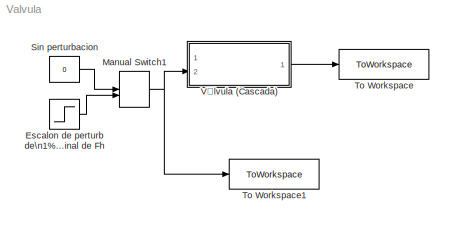
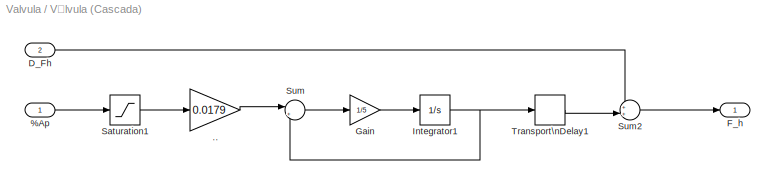
MODEL Valvula
KIND model
BLOCK [Step] Escalon de perturb de\n1% del valor nominal de Fh
  After = Fh0*1.01
  Before = Fh0
  SID = 11
  SampleTime = 0
  Time = 50
BLOCK [ManualSwitch] Manual Switch1
  SID = 14
BLOCK [Constant] Sin perturbacion
  SID = 13
  Value = 0
BLOCK [ToWorkspace] To Workspace
  FixptAsFi = on
  MaxDataPoints = inf
  Ports = [1]
  SID = 15
  SampleTime = -1
  VariableName = F_hValv
BLOCK [ToWorkspace] To Workspace1
  FixptAsFi = on
  MaxDataPoints = inf
  Ports = [1]
  SID = 17
  SampleTime = -1
  VariableName = D_Fhent
BLOCK [SubSystem] Válvula (Cascada)
  Ports = [2, 1]
  RequestExecContextInheritance = off
  SID = 1
BLOCK [Inport] Válvula (Cascada)/%Ap
  SID = 2
BLOCK [Gain] Válvula (Cascada)/..
  Gain = 0.0179
  SID = 4
BLOCK [Inport] Válvula (Cascada)/D_Fh
  Port = 2
  SID = 3
BLOCK [Outport] Válvula (Cascada)/F_h
  SID = 10
BLOCK [Gain] Válvula (Cascada)/Gain
  Gain = 1/5
  SID = 5
BLOCK [Integrator] Válvula (Cascada)/Integrator1
  InitialCondition = Fh0
  Ports = [1, 1]
  SID = 6
BLOCK [Saturate] Válvula (Cascada)/Saturation1
  LowerLimit = 0
  SID = 7
  UpperLimit = 100
BLOCK [Sum] Válvula (Cascada)/Sum
  Inputs = |+-
  Ports = [2, 1]
  SID = 8
BLOCK [Sum] Válvula (Cascada)/Sum2
  Inputs = ++|
  Ports = [2, 1]
  SID = 9
BLOCK [TransportDelay] Válvula (Cascada)/Transport\nDelay1
  InitialOutput = Fh0
  Ports = [1, 1]
  SID = 12
LINE Escalon de perturb de\n1% del valor nominal de Fh:1 -> Manual Switch1:2
NET Manual Switch1:1 -> To Workspace1:1, Válvula (Cascada):2
LINE Sin perturbacion:1 -> Manual Switch1:1
LINE Válvula (Cascada)/%Ap:1 -> Válvula (Cascada)/Saturation1:1
LINE Válvula (Cascada)/..:1 -> Válvula (Cascada)/Sum:1
LINE Válvula (Cascada)/D_Fh:1 -> Válvula (Cascada)/Sum2:1
LINE Válvula (Cascada)/Gain:1 -> Válvula (Cascada)/Integrator1:1
NET Válvula (Cascada)/Integrator1:1 -> Válvula (Cascada)/Sum:2, Válvula (Cascada)/Transport\nDelay1:1
LINE Válvula (Cascada)/Saturation1:1 -> Válvula (Cascada)/..:1
LINE Válvula (Cascada)/Sum2:1 -> Válvula (Cascada)/F_h:1
LINE Válvula (Cascada)/Sum:1 -> Válvula (Cascada)/Gain:1
LINE Válvula (Cascada)/Transport\nDelay1:1 -> Válvula (Cascada)/Sum2:2
LINE Válvula (Cascada):1 -> To Workspace:1
note: NET lines group one-source signal fan-out (src -> all destinations, sorted); 1:1 wires keep LINE
